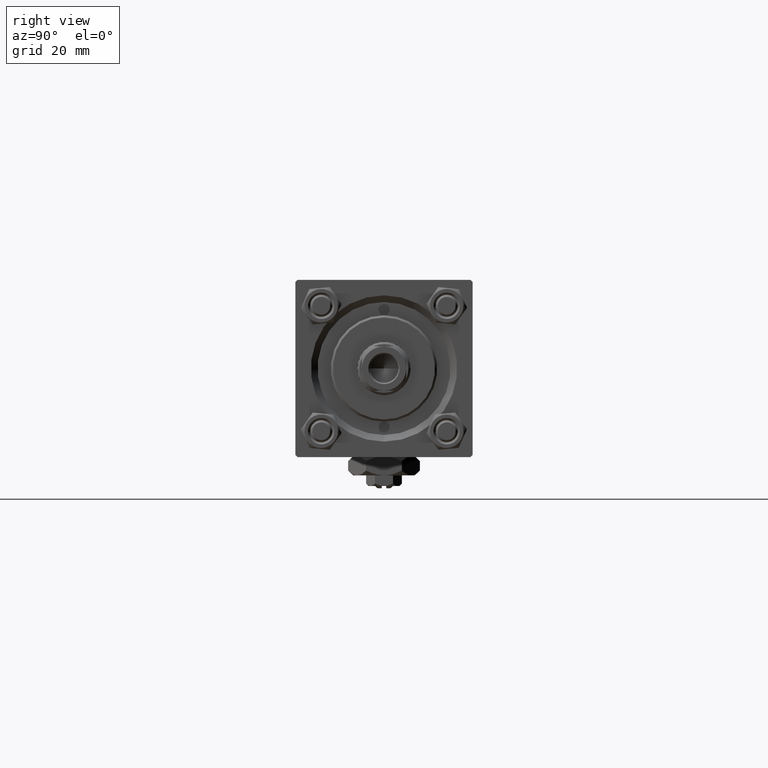
[diagram: clean part render]
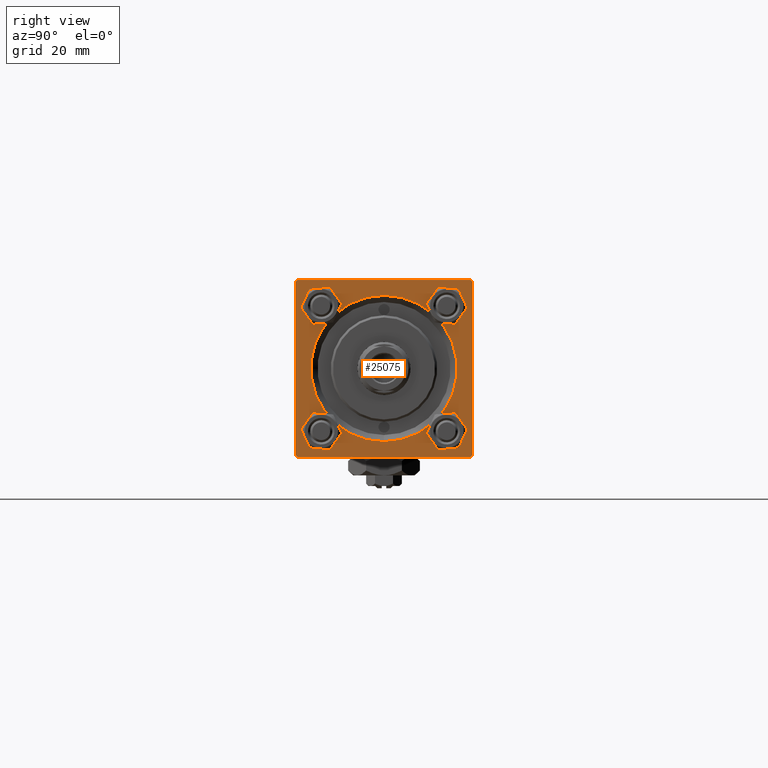
[diagram: same view with one face highlighted and labeled with its STEP entity id]
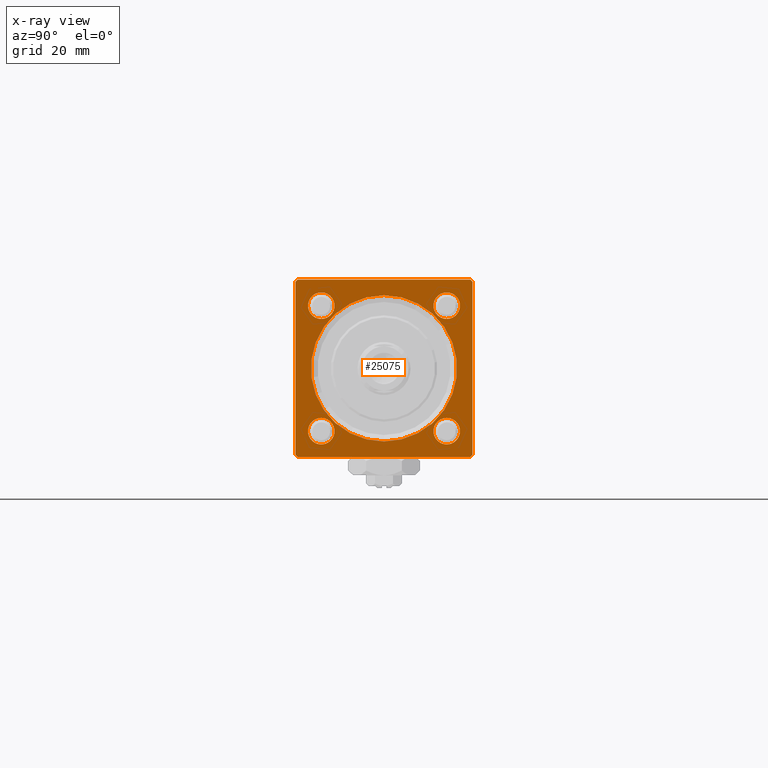
[diagram: x-ray of the same camera — body ghosted, the highlighted face saturated]
A machine part, right view. The second image highlights one B-rep face of the part: STEP entity #25075.
The next image is the same camera in x-ray: the body ghosted, the highlighted face saturated — about 0% of this face is hidden behind the body in this view.
In plain terms, the highlighted planar face has unit normal (-1, 0, 0).
Its self-contained STEP definition (entity closure, byte-faithful):
#9 = DIRECTION ( 'NONE',  ( -1.000000000000000000, -0.000000000000000000, -0.000000000000000000 ) ) ;
#53 = VERTEX_POINT ( 'NONE', #44375 ) ;
#263 = CARTESIAN_POINT ( 'NONE',  ( 119.0000000000000142, -14.15000000000000036, 14.15000000000000036 ) ) ;
#491 = CARTESIAN_POINT ( 'NONE',  ( 119.0000000000000142, 19.49999999999996803, 20.00000000000000000 ) ) ;
#908 = VERTEX_POINT ( 'NONE', #15943 ) ;
#972 = DIRECTION ( 'NONE',  ( -1.000000000000000000, -0.000000000000000000, -0.000000000000000000 ) ) ;
#1122 = EDGE_CURVE ( 'NONE', #43859, #10806, #50435, .T. ) ;
#2047 = ORIENTED_EDGE ( 'NONE', *, *, #5322, .T. ) ;
#2069 = DIRECTION ( 'NONE',  ( -1.000000000000000000, -0.000000000000000000, -0.000000000000000000 ) ) ;
#2098 = CIRCLE ( 'NONE', #48806, 3.000000000000004441 ) ;
#2496 = LINE ( 'NONE', #37995, #23116 ) ;
#2570 = DIRECTION ( 'NONE',  ( 0.000000000000000000, 0.000000000000000000, 1.000000000000000000 ) ) ;
#2904 = CARTESIAN_POINT ( 'NONE',  ( 119.0000000000000142, -14.15000000000000036, -17.15000000000000568 ) ) ;
#3062 = EDGE_CURVE ( 'NONE', #22615, #18377, #18069, .T. ) ;
#3711 = CIRCLE ( 'NONE', #51242, 3.000000000000000888 ) ;
#4196 = EDGE_CURVE ( 'NONE', #10806, #43859, #3711, .T. ) ;
#4317 = EDGE_CURVE ( 'NONE', #20014, #908, #41247, .T. ) ;
#4606 = EDGE_LOOP ( 'NONE', ( #24893, #46838 ) ) ;
#5207 = DIRECTION ( 'NONE',  ( 0.000000000000000000, 0.000000000000000000, 1.000000000000000000 ) ) ;
#5322 = EDGE_CURVE ( 'NONE', #43050, #25083, #22889, .T. ) ;
#5325 = ORIENTED_EDGE ( 'NONE', *, *, #31748, .T. ) ;
#5412 = CARTESIAN_POINT ( 'NONE',  ( 119.0000000000000142, 14.15000000000000036, -14.15000000000000036 ) ) ;
#5618 = EDGE_CURVE ( 'NONE', #46622, #53, #23317, .T. ) ;
#5846 = EDGE_LOOP ( 'NONE', ( #17876, #36567 ) ) ;
#6673 = ORIENTED_EDGE ( 'NONE', *, *, #39065, .T. ) ;
#6747 = CARTESIAN_POINT ( 'NONE',  ( 119.0000000000000142, 0.000000000000000000, 0.000000000000000000 ) ) ;
#6808 = EDGE_CURVE ( 'NONE', #49113, #37916, #29933, .T. ) ;
#9378 = DIRECTION ( 'NONE',  ( 0.000000000000000000, -1.000000000000000000, 0.000000000000000000 ) ) ;
#9656 = AXIS2_PLACEMENT_3D ( 'NONE', #263, #9, #15938 ) ;
#9699 = CARTESIAN_POINT ( 'NONE',  ( 119.0000000000000142, -14.15000000000000036, 14.15000000000000036 ) ) ;
#10271 = CIRCLE ( 'NONE', #14428, 16.50000000000001421 ) ;
#10293 = CARTESIAN_POINT ( 'NONE',  ( 119.0000000000000142, -19.50000000000001776, 19.99999999999999645 ) ) ;
#10674 = CIRCLE ( 'NONE', #34006, 3.000000000000004441 ) ;
#10806 = VERTEX_POINT ( 'NONE', #11657 ) ;
#11459 = DIRECTION ( 'NONE',  ( -1.000000000000000000, -0.000000000000000000, -0.000000000000000000 ) ) ;
#11657 = CARTESIAN_POINT ( 'NONE',  ( 119.0000000000000142, 14.15000000000000036, 11.14999999999999858 ) ) ;
#11690 = DIRECTION ( 'NONE',  ( -0.000000000000000000, 0.7071067811865474617, 0.7071067811865474617 ) ) ;
#12660 = DIRECTION ( 'NONE',  ( 0.000000000000000000, -1.000000000000000000, -8.673617379884035472E-17 ) ) ;
#13214 = VECTOR ( 'NONE', #42972, 999.9999999999998863 ) ;
#13442 = ORIENTED_EDGE ( 'NONE', *, *, #30953, .F. ) ;
#13819 = CARTESIAN_POINT ( 'NONE',  ( 119.0000000000000142, -20.00000000000000355, 19.99999999999999645 ) ) ;
#13850 = ORIENTED_EDGE ( 'NONE', *, *, #50287, .T. ) ;
#14428 = AXIS2_PLACEMENT_3D ( 'NONE', #6747, #38562, #51378 ) ;
#14582 = ORIENTED_EDGE ( 'NONE', *, *, #48842, .T. ) ;
#14688 = AXIS2_PLACEMENT_3D ( 'NONE', #46601, #42414, #35332 ) ;
#15487 = CARTESIAN_POINT ( 'NONE',  ( 119.0000000000000142, 0.000000000000000000, -16.50000000000001421 ) ) ;
#15861 = ORIENTED_EDGE ( 'NONE', *, *, #17081, .T. ) ;
#15938 = DIRECTION ( 'NONE',  ( 0.000000000000000000, 0.000000000000000000, 1.000000000000000000 ) ) ;
#15943 = CARTESIAN_POINT ( 'NONE',  ( 119.0000000000000142, -14.15000000000000036, 17.14999999999997726 ) ) ;
#16412 = VERTEX_POINT ( 'NONE', #2904 ) ;
#16776 = CARTESIAN_POINT ( 'NONE',  ( 119.0000000000000142, 14.15000000000000036, -14.15000000000000036 ) ) ;
#16969 = DIRECTION ( 'NONE',  ( -1.000000000000000000, -0.000000000000000000, -0.000000000000000000 ) ) ;
#17003 = CARTESIAN_POINT ( 'NONE',  ( 119.0000000000000142, 14.15000000000000036, 14.15000000000000036 ) ) ;
#17081 = EDGE_CURVE ( 'NONE', #53, #46622, #10271, .T. ) ;
#17876 = ORIENTED_EDGE ( 'NONE', *, *, #28431, .T. ) ;
#17877 = AXIS2_PLACEMENT_3D ( 'NONE', #47473, #46707, #31777 ) ;
#18000 = DIRECTION ( 'NONE',  ( 0.000000000000000000, 0.000000000000000000, 1.000000000000000000 ) ) ;
#18069 = LINE ( 'NONE', #33983, #43819 ) ;
#18153 = VECTOR ( 'NONE', #12660, 1000.000000000000000 ) ;
#18377 = VERTEX_POINT ( 'NONE', #27549 ) ;
#18994 = VECTOR ( 'NONE', #29468, 1000.000000000000000 ) ;
#19300 = ORIENTED_EDGE ( 'NONE', *, *, #37237, .F. ) ;
#19490 = ORIENTED_EDGE ( 'NONE', *, *, #5618, .T. ) ;
#19813 = CARTESIAN_POINT ( 'NONE',  ( 119.0000000000000142, 14.15000000000000036, 17.15000000000000568 ) ) ;
#20014 = VERTEX_POINT ( 'NONE', #35639 ) ;
#21385 = AXIS2_PLACEMENT_3D ( 'NONE', #16776, #48368, #2570 ) ;
#21475 = VECTOR ( 'NONE', #11690, 1000.000000000000114 ) ;
#21560 = DIRECTION ( 'NONE',  ( 0.000000000000000000, 0.000000000000000000, -1.000000000000000000 ) ) ;
#21897 = CARTESIAN_POINT ( 'NONE',  ( 119.0000000000000142, 14.15000000000000036, 14.15000000000000036 ) ) ;
#22077 = AXIS2_PLACEMENT_3D ( 'NONE', #21897, #2069, #18000 ) ;
#22179 = DIRECTION ( 'NONE',  ( -1.000000000000000000, -0.000000000000000000, -0.000000000000000000 ) ) ;
#22615 = VERTEX_POINT ( 'NONE', #37279 ) ;
#22664 = FACE_BOUND ( 'NONE', #4606, .T. ) ;
#22759 = VERTEX_POINT ( 'NONE', #26807 ) ;
#22889 = LINE ( 'NONE', #39323, #21475 ) ;
#23116 = VECTOR ( 'NONE', #21560, 1000.000000000000000 ) ;
#23317 = CIRCLE ( 'NONE', #35848, 16.50000000000001421 ) ;
#23943 = CARTESIAN_POINT ( 'NONE',  ( 119.0000000000000142, -14.15000000000000036, -14.15000000000000036 ) ) ;
#24041 = DIRECTION ( 'NONE',  ( -1.000000000000000000, -0.000000000000000000, -0.000000000000000000 ) ) ;
#24646 = CARTESIAN_POINT ( 'NONE',  ( 119.0000000000000142, 19.99999999999999645, 20.00000000000000000 ) ) ;
#24893 = ORIENTED_EDGE ( 'NONE', *, *, #4317, .T. ) ;
#25075 = ADVANCED_FACE ( 'NONE', ( #26845, #30757, #35442, #22664, #51654, #35185 ), #27619, .F. ) ;
#25083 = VERTEX_POINT ( 'NONE', #38841 ) ;
#25290 = CARTESIAN_POINT ( 'NONE',  ( 119.0000000000000142, 0.000000000000000000, 0.000000000000000000 ) ) ;
#25659 = CARTESIAN_POINT ( 'NONE',  ( 119.0000000000000142, 14.15000000000000036, -11.14999999999999680 ) ) ;
#25937 = ORIENTED_EDGE ( 'NONE', *, *, #3062, .T. ) ;
#26807 = CARTESIAN_POINT ( 'NONE',  ( 119.0000000000000142, -14.15000000000000036, -11.14999999999999680 ) ) ;
#26845 = FACE_BOUND ( 'NONE', #5846, .T. ) ;
#27483 = ORIENTED_EDGE ( 'NONE', *, *, #1122, .T. ) ;
#27549 = CARTESIAN_POINT ( 'NONE',  ( 119.0000000000000142, -19.50000000000002487, -20.00000000000000000 ) ) ;
#27619 = PLANE ( 'NONE',  #17877 ) ;
#28431 = EDGE_CURVE ( 'NONE', #16412, #22759, #43846, .T. ) ;
#28780 = CIRCLE ( 'NONE', #9656, 2.999999999999973355 ) ;
#29295 = EDGE_LOOP ( 'NONE', ( #19490, #15861 ) ) ;
#29468 = DIRECTION ( 'NONE',  ( 0.000000000000000000, 8.673617379884036705E-17, -1.000000000000000000 ) ) ;
#29933 = LINE ( 'NONE', #48767, #39193 ) ;
#30089 = CARTESIAN_POINT ( 'NONE',  ( 119.0000000000000142, 19.99999999999999645, 19.49999999999998579 ) ) ;
#30757 = FACE_BOUND ( 'NONE', #34438, .T. ) ;
#30953 = EDGE_CURVE ( 'NONE', #34135, #25083, #2496, .T. ) ;
#31748 = EDGE_CURVE ( 'NONE', #37916, #22615, #33133, .T. ) ;
#31777 = DIRECTION ( 'NONE',  ( -0.000000000000000000, 0.000000000000000000, 1.000000000000000000 ) ) ;
#31925 = EDGE_CURVE ( 'NONE', #22759, #16412, #10674, .T. ) ;
#32124 = EDGE_LOOP ( 'NONE', ( #5325, #25937, #19300, #2047, #13442, #13850, #14582, #35212 ) ) ;
#32695 = ORIENTED_EDGE ( 'NONE', *, *, #4196, .T. ) ;
#32808 = DIRECTION ( 'NONE',  ( 0.000000000000000000, 0.000000000000000000, 1.000000000000000000 ) ) ;
#32872 = VECTOR ( 'NONE', #9378, 1000.000000000000000 ) ;
#32907 = DIRECTION ( 'NONE',  ( 0.000000000000000000, 0.000000000000000000, 1.000000000000000000 ) ) ;
#33133 = LINE ( 'NONE', #13819, #18994 ) ;
#33494 = VERTEX_POINT ( 'NONE', #25659 ) ;
#33699 = AXIS2_PLACEMENT_3D ( 'NONE', #9699, #22179, #50394 ) ;
#33870 = CIRCLE ( 'NONE', #21385, 3.000000000000004441 ) ;
#33983 = CARTESIAN_POINT ( 'NONE',  ( 119.0000000000000142, -19.50000000000002487, -20.00000000000000000 ) ) ;
#34006 = AXIS2_PLACEMENT_3D ( 'NONE', #23943, #11459, #47714 ) ;
#34132 = CARTESIAN_POINT ( 'NONE',  ( 119.0000000000000142, -20.00000000000000355, 19.50000000000002487 ) ) ;
#34135 = VERTEX_POINT ( 'NONE', #30089 ) ;
#34438 = EDGE_LOOP ( 'NONE', ( #6673, #43460 ) ) ;
#35185 = FACE_OUTER_BOUND ( 'NONE', #32124, .T. ) ;
#35212 = ORIENTED_EDGE ( 'NONE', *, *, #6808, .T. ) ;
#35332 = DIRECTION ( 'NONE',  ( 0.000000000000000000, 0.000000000000000000, 1.000000000000000000 ) ) ;
#35442 = FACE_BOUND ( 'NONE', #44141, .T. ) ;
#35639 = CARTESIAN_POINT ( 'NONE',  ( 119.0000000000000142, -14.15000000000000036, 11.15000000000002700 ) ) ;
#35848 = AXIS2_PLACEMENT_3D ( 'NONE', #25290, #16969, #5207 ) ;
#36567 = ORIENTED_EDGE ( 'NONE', *, *, #31925, .T. ) ;
#36963 = VERTEX_POINT ( 'NONE', #491 ) ;
#37237 = EDGE_CURVE ( 'NONE', #43050, #18377, #45128, .T. ) ;
#37279 = CARTESIAN_POINT ( 'NONE',  ( 119.0000000000000142, -20.00000000000000000, -19.50000000000001066 ) ) ;
#37776 = CARTESIAN_POINT ( 'NONE',  ( 119.0000000000000142, 19.99999999999999645, -20.00000000000000000 ) ) ;
#37916 = VERTEX_POINT ( 'NONE', #34132 ) ;
#37994 = CARTESIAN_POINT ( 'NONE',  ( 119.0000000000000142, 19.49999999999999645, -20.00000000000000000 ) ) ;
#37995 = CARTESIAN_POINT ( 'NONE',  ( 119.0000000000000142, 19.99999999999999645, 20.00000000000000000 ) ) ;
#38562 = DIRECTION ( 'NONE',  ( -1.000000000000000000, -0.000000000000000000, -0.000000000000000000 ) ) ;
#38841 = CARTESIAN_POINT ( 'NONE',  ( 119.0000000000000142, 19.99999999999999645, -19.50000000000000000 ) ) ;
#39065 = EDGE_CURVE ( 'NONE', #49558, #33494, #2098, .T. ) ;
#39193 = VECTOR ( 'NONE', #45106, 1000.000000000000114 ) ;
#39323 = CARTESIAN_POINT ( 'NONE',  ( 119.0000000000000142, 19.99999999999999645, -19.50000000000000000 ) ) ;
#39489 = EDGE_CURVE ( 'NONE', #908, #20014, #28780, .T. ) ;
#41247 = CIRCLE ( 'NONE', #33699, 2.999999999999973355 ) ;
#42414 = DIRECTION ( 'NONE',  ( -1.000000000000000000, -0.000000000000000000, -0.000000000000000000 ) ) ;
#42972 = DIRECTION ( 'NONE',  ( 0.000000000000000000, -0.7071067811865574537, 0.7071067811865376918 ) ) ;
#43050 = VERTEX_POINT ( 'NONE', #37994 ) ;
#43460 = ORIENTED_EDGE ( 'NONE', *, *, #45686, .T. ) ;
#43819 = VECTOR ( 'NONE', #49939, 999.9999999999998863 ) ;
#43846 = CIRCLE ( 'NONE', #14688, 3.000000000000004441 ) ;
#43859 = VERTEX_POINT ( 'NONE', #19813 ) ;
#44141 = EDGE_LOOP ( 'NONE', ( #32695, #27483 ) ) ;
#44375 = CARTESIAN_POINT ( 'NONE',  ( 119.0000000000000142, 2.020667218593134678E-15, 16.50000000000001421 ) ) ;
#44765 = LINE ( 'NONE', #24646, #18153 ) ;
#45106 = DIRECTION ( 'NONE',  ( -0.000000000000000000, -0.7071067811865573427, -0.7071067811865376918 ) ) ;
#45128 = LINE ( 'NONE', #37776, #32872 ) ;
#45686 = EDGE_CURVE ( 'NONE', #33494, #49558, #33870, .T. ) ;
#46506 = CARTESIAN_POINT ( 'NONE',  ( 119.0000000000000142, 14.15000000000000036, -17.15000000000000568 ) ) ;
#46601 = CARTESIAN_POINT ( 'NONE',  ( 119.0000000000000142, -14.15000000000000036, -14.15000000000000036 ) ) ;
#46622 = VERTEX_POINT ( 'NONE', #15487 ) ;
#46707 = DIRECTION ( 'NONE',  ( -1.000000000000000000, 0.000000000000000000, -0.000000000000000000 ) ) ;
#46838 = ORIENTED_EDGE ( 'NONE', *, *, #39489, .T. ) ;
#46896 = CARTESIAN_POINT ( 'NONE',  ( 119.0000000000000142, 19.49999999999996803, 20.00000000000000000 ) ) ;
#47473 = CARTESIAN_POINT ( 'NONE',  ( 119.0000000000000142, 0.000000000000000000, 0.000000000000000000 ) ) ;
#47714 = DIRECTION ( 'NONE',  ( 0.000000000000000000, 0.000000000000000000, 1.000000000000000000 ) ) ;
#48368 = DIRECTION ( 'NONE',  ( -1.000000000000000000, -0.000000000000000000, -0.000000000000000000 ) ) ;
#48767 = CARTESIAN_POINT ( 'NONE',  ( 119.0000000000000142, -20.00000000000000355, 19.50000000000002487 ) ) ;
#48806 = AXIS2_PLACEMENT_3D ( 'NONE', #5412, #972, #32808 ) ;
#48842 = EDGE_CURVE ( 'NONE', #36963, #49113, #44765, .T. ) ;
#49113 = VERTEX_POINT ( 'NONE', #10293 ) ;
#49558 = VERTEX_POINT ( 'NONE', #46506 ) ;
#49939 = DIRECTION ( 'NONE',  ( 0.000000000000000000, 0.7071067811865376918, -0.7071067811865574537 ) ) ;
#50287 = EDGE_CURVE ( 'NONE', #34135, #36963, #51331, .T. ) ;
#50394 = DIRECTION ( 'NONE',  ( 0.000000000000000000, 0.000000000000000000, 1.000000000000000000 ) ) ;
#50435 = CIRCLE ( 'NONE', #22077, 3.000000000000000888 ) ;
#51242 = AXIS2_PLACEMENT_3D ( 'NONE', #17003, #24041, #32907 ) ;
#51331 = LINE ( 'NONE', #46896, #13214 ) ;
#51378 = DIRECTION ( 'NONE',  ( 0.000000000000000000, 0.000000000000000000, 1.000000000000000000 ) ) ;
#51654 = FACE_BOUND ( 'NONE', #29295, .T. ) ;